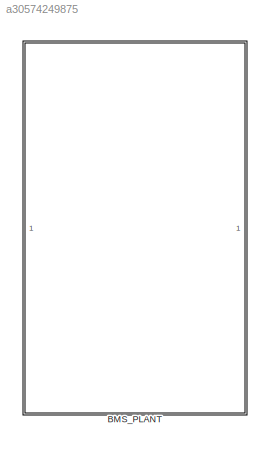
MODEL slx_a30574249875
KIND library
CONFIG AbsTol = auto
CONFIG EnableMultiTasking = off
CONFIG FixedStep = auto
CONFIG MaxStep = auto
CONFIG MinStep = auto
CONFIG RelTol = 1e-3
CONFIG SampleTimeConstraint = Unconstrained
CONFIG SolverName = VariableStepAuto
CONFIG StartTime = 0.0
CONFIG StopTime = 10.0
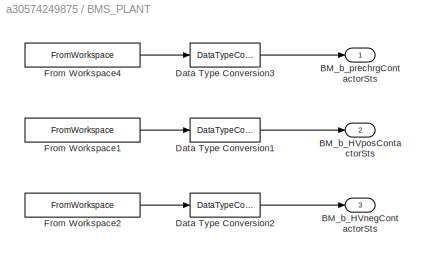
BLOCK [SubSystem] BMS_PLANT
BLOCK [Outport] BMS_PLANT/BM_b_HVnegContactorSts
  Port = 3
BLOCK [Outport] BMS_PLANT/BM_b_HVposContactorSts
  Port = 2
BLOCK [Outport] BMS_PLANT/BM_b_prechrgContactorSts
BLOCK [DataTypeConversion] BMS_PLANT/Data Type Conversion1
  OutDataTypeStr = boolean
  RndMeth = Floor
  SaturateOnIntegerOverflow = off
BLOCK [DataTypeConversion] BMS_PLANT/Data Type Conversion2
  OutDataTypeStr = boolean
  RndMeth = Floor
  SaturateOnIntegerOverflow = off
BLOCK [DataTypeConversion] BMS_PLANT/Data Type Conversion3
  OutDataTypeStr = boolean
  RndMeth = Floor
  SaturateOnIntegerOverflow = off
BLOCK [FromWorkspace] BMS_PLANT/From Workspace1
  VariableName = BM_b_HVposContactorSts
BLOCK [FromWorkspace] BMS_PLANT/From Workspace2
  VariableName = BM_b_HVnegContactorSts
BLOCK [FromWorkspace] BMS_PLANT/From Workspace4
  VariableName = BM_b_prechrgContactorSts
LINE BMS_PLANT/Data Type Conversion1:1 -> BMS_PLANT/BM_b_HVposContactorSts:1
LINE BMS_PLANT/Data Type Conversion2:1 -> BMS_PLANT/BM_b_HVnegContactorSts:1
LINE BMS_PLANT/Data Type Conversion3:1 -> BMS_PLANT/BM_b_prechrgContactorSts:1
LINE BMS_PLANT/From Workspace1:1 -> BMS_PLANT/Data Type Conversion1:1
LINE BMS_PLANT/From Workspace2:1 -> BMS_PLANT/Data Type Conversion2:1
LINE BMS_PLANT/From Workspace4:1 -> BMS_PLANT/Data Type Conversion3:1
